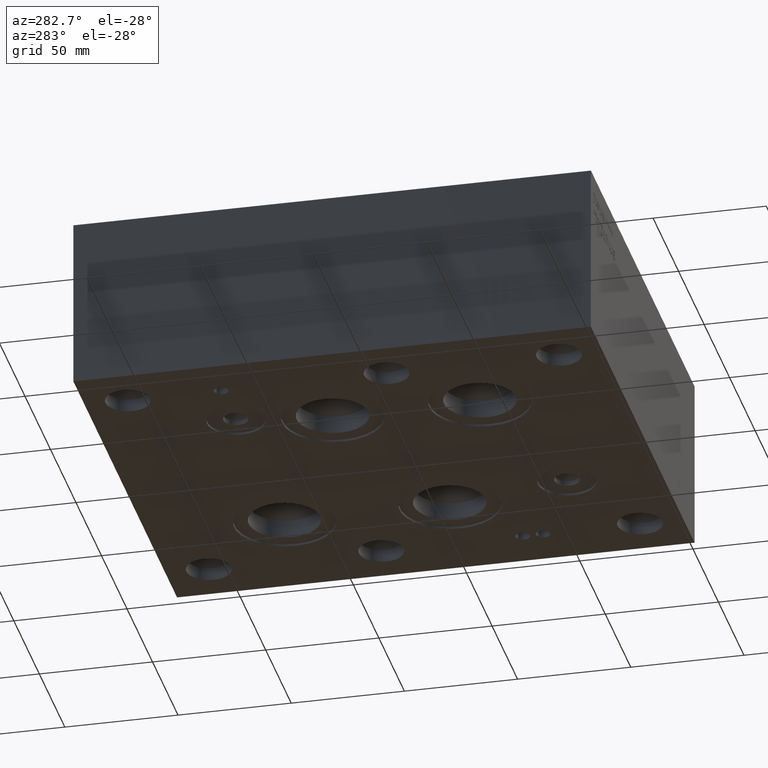
[diagram: clean part render]
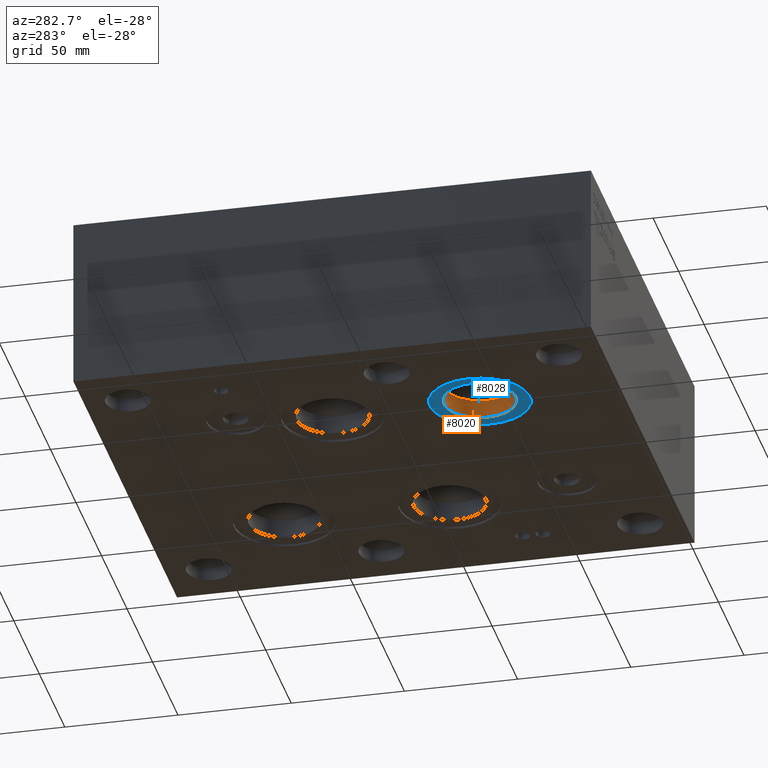
[diagram: same view with the hole feature highlighted: cylindrical wall and planar end face, labeled with their STEP entity ids]
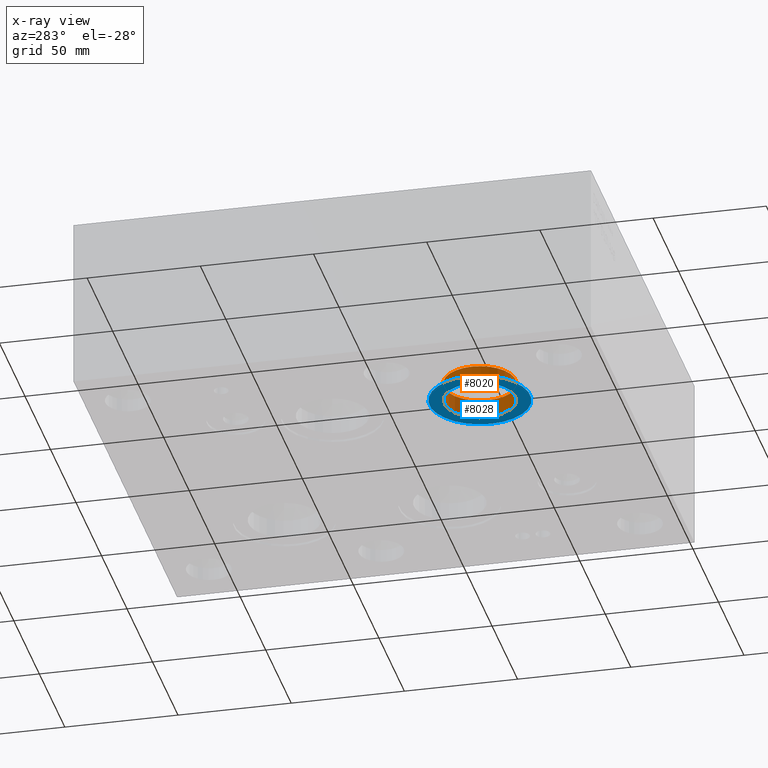
[diagram: x-ray of the same camera — body ghosted, the hole faces saturated]
A machine part, auxiliary view. The highlighted faces form one hole feature of diameter 31.75 mm: the cylindrical wall (entity #8020, orange) and its adjacent planar end face (entity #8028, blue) — they share a circular edge in the B-rep.
The next image is the same camera in x-ray (body ghosted, the hole faces saturated) — the bore reads through the body.
Wall:
#21=CYLINDRICAL_SURFACE('',#8409,15.875);
#90=CIRCLE('',#8407,15.875);
#91=CIRCLE('',#8408,15.875);
#92=CIRCLE('',#8410,15.875);
#884=FACE_OUTER_BOUND('',#1329,.T.);
#1329=EDGE_LOOP('',(#6631,#6632,#6633,#6634,#6635));
#2181=LINE('',#13123,#2968);
#2968=VECTOR('',#9941,15.875);
#3625=VERTEX_POINT('',#13114);
#3626=VERTEX_POINT('',#13115);
#3628=VERTEX_POINT('',#13121);
#4682=EDGE_CURVE('',#3625,#3626,#90,.T.);
#4684=EDGE_CURVE('',#3626,#3625,#91,.T.);
#4685=EDGE_CURVE('',#3628,#3628,#92,.T.);
#4686=EDGE_CURVE('',#3628,#3626,#2181,.T.);
#6631=ORIENTED_EDGE('',*,*,#4685,.F.);
#6632=ORIENTED_EDGE('',*,*,#4686,.T.);
#6633=ORIENTED_EDGE('',*,*,#4682,.F.);
#6634=ORIENTED_EDGE('',*,*,#4684,.F.);
#6635=ORIENTED_EDGE('',*,*,#4686,.F.);
#8020=ADVANCED_FACE('',(#884),#21,.F.);
#8407=AXIS2_PLACEMENT_3D('',#13116,#9932,#9933);
#8408=AXIS2_PLACEMENT_3D('',#13119,#9935,#9936);
#8409=AXIS2_PLACEMENT_3D('',#13120,#9937,#9938);
#8410=AXIS2_PLACEMENT_3D('',#13122,#9939,#9940);
#9932=DIRECTION('center_axis',(0.,0.,-1.));
#9933=DIRECTION('ref_axis',(1.,0.,0.));
#9935=DIRECTION('center_axis',(0.,0.,-1.));
#9936=DIRECTION('ref_axis',(1.,0.,0.));
#9937=DIRECTION('center_axis',(0.,0.,-1.));
#9938=DIRECTION('ref_axis',(1.,0.,0.));
#9939=DIRECTION('center_axis',(0.,0.,1.));
#9940=DIRECTION('ref_axis',(1.,0.,0.));
#9941=DIRECTION('',(0.,0.,1.));
#13114=CARTESIAN_POINT('',(73.025,61.9252,9.16544));
#13115=CARTESIAN_POINT('',(41.275,61.9252,9.16544));
#13116=CARTESIAN_POINT('Origin',(57.15,61.9252,9.16544));
#13119=CARTESIAN_POINT('Origin',(57.15,61.9252,9.16544));
#13120=CARTESIAN_POINT('Origin',(57.15,61.9252,4.58272));
#13121=CARTESIAN_POINT('',(41.275,61.9252,1.016));
#13122=CARTESIAN_POINT('Origin',(57.15,61.9252,1.016));
#13123=CARTESIAN_POINT('',(41.275,61.9252,4.58272));
End face:
#92=CIRCLE('',#8410,15.875);
#107=CIRCLE('',#8432,22.225);
#108=CIRCLE('',#8433,22.225);
#331=FACE_BOUND('',#1341,.T.);
#892=FACE_OUTER_BOUND('',#1340,.T.);
#1340=EDGE_LOOP('',(#6669,#6670));
#1341=EDGE_LOOP('',(#6671));
#3628=VERTEX_POINT('',#13121);
#3643=VERTEX_POINT('',#13162);
#3644=VERTEX_POINT('',#13164);
#4685=EDGE_CURVE('',#3628,#3628,#92,.T.);
#4705=EDGE_CURVE('',#3644,#3643,#107,.T.);
#4706=EDGE_CURVE('',#3643,#3644,#108,.T.);
#6669=ORIENTED_EDGE('',*,*,#4705,.T.);
#6670=ORIENTED_EDGE('',*,*,#4706,.T.);
#6671=ORIENTED_EDGE('',*,*,#4685,.T.);
#7394=PLANE('',#8434);
#8028=ADVANCED_FACE('',(#892,#331),#7394,.T.);
#8410=AXIS2_PLACEMENT_3D('',#13122,#9939,#9940);
#8432=AXIS2_PLACEMENT_3D('',#13165,#9988,#9989);
#8433=AXIS2_PLACEMENT_3D('',#13166,#9990,#9991);
#8434=AXIS2_PLACEMENT_3D('',#13167,#9992,#9993);
#9939=DIRECTION('center_axis',(0.,0.,1.));
#9940=DIRECTION('ref_axis',(1.,0.,0.));
#9988=DIRECTION('center_axis',(0.,0.,-1.));
#9989=DIRECTION('ref_axis',(1.,0.,0.));
#9990=DIRECTION('center_axis',(0.,0.,-1.));
#9991=DIRECTION('ref_axis',(1.,0.,0.));
#9992=DIRECTION('center_axis',(0.,0.,-1.));
#9993=DIRECTION('ref_axis',(1.,0.,0.));
#13121=CARTESIAN_POINT('',(41.275,61.9252,1.016));
#13122=CARTESIAN_POINT('Origin',(57.15,61.9252,1.016));
#13162=CARTESIAN_POINT('',(34.925,61.9252,1.016));
#13164=CARTESIAN_POINT('',(79.375,61.9252,1.016));
#13165=CARTESIAN_POINT('Origin',(57.15,61.9252,1.016));
#13166=CARTESIAN_POINT('Origin',(57.15,61.9252,1.016));
#13167=CARTESIAN_POINT('Origin',(57.15,61.9252,1.016));